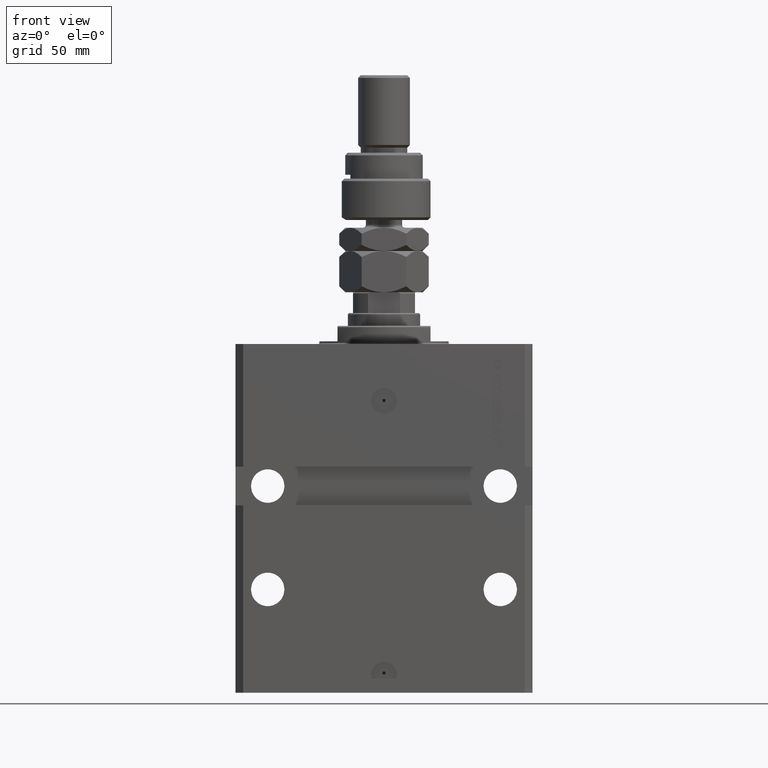
[diagram: clean part render]
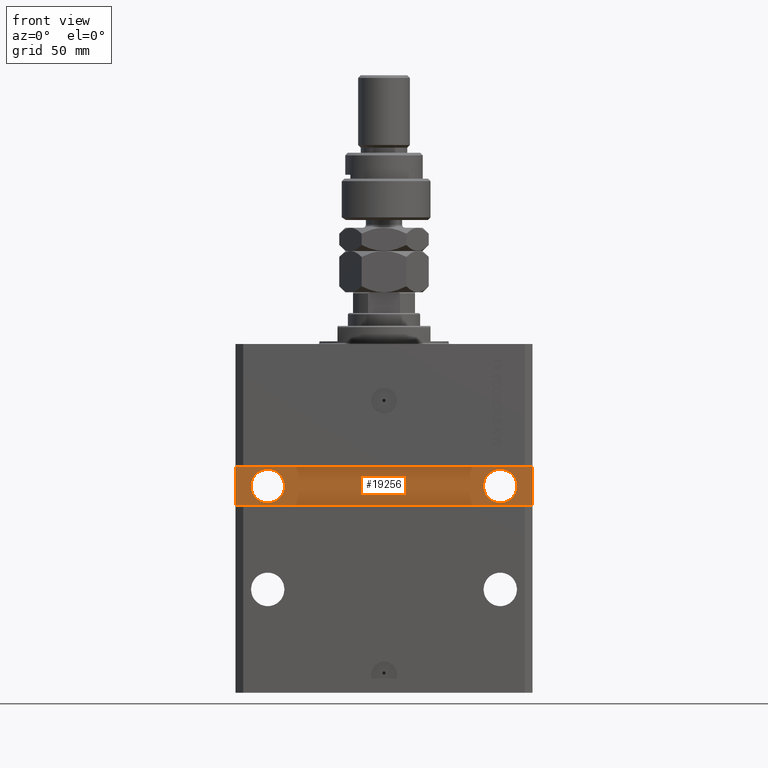
[diagram: same view with one face highlighted and labeled with its STEP entity id]
A machine part, front view. The second image highlights one B-rep face of the part: STEP entity #19256.
In plain terms, the highlighted planar face has unit normal (0, -1, 0).
Its self-contained STEP definition (entity closure, byte-faithful):
#1783 = LINE ( 'NONE', #34362, #15198 ) ;
#2159 = CARTESIAN_POINT ( 'NONE',  ( -44.99999999999998579, -40.00000000000000000, -55.00000000000001421 ) ) ;
#2695 = EDGE_CURVE ( 'NONE', #39566, #10025, #11452, .T. ) ;
#6715 = DIRECTION ( 'NONE',  ( 1.101411730780568590E-16, -1.000000000000000000, 0.000000000000000000 ) ) ;
#7630 = CARTESIAN_POINT ( 'NONE',  ( -57.50000000000000711, -40.00000000000000000, -62.50000000000000000 ) ) ;
#7868 = VERTEX_POINT ( 'NONE', #41938 ) ;
#9873 = ORIENTED_EDGE ( 'NONE', *, *, #31801, .F. ) ;
#10025 = VERTEX_POINT ( 'NONE', #39234 ) ;
#11060 = PLANE ( 'NONE',  #29386 ) ;
#11452 = CIRCLE ( 'NONE', #14796, 6.499999999999999112 ) ;
#11574 = FACE_BOUND ( 'NONE', #31890, .T. ) ;
#11756 = VERTEX_POINT ( 'NONE', #39561 ) ;
#13924 = ORIENTED_EDGE ( 'NONE', *, *, #24439, .F. ) ;
#14796 = AXIS2_PLACEMENT_3D ( 'NONE', #46443, #6715, #34575 ) ;
#15021 = LINE ( 'NONE', #7630, #39394 ) ;
#15198 = VECTOR ( 'NONE', #38579, 1000.000000000000000 ) ;
#15264 = DIRECTION ( 'NONE',  ( 1.000000000000000000, 1.206764157201257045E-16, 0.000000000000000000 ) ) ;
#15284 = DIRECTION ( 'NONE',  ( 1.000000000000000000, 1.206764157201257045E-16, 6.033820786006285224E-17 ) ) ;
#16746 = EDGE_CURVE ( 'NONE', #16876, #40348, #25624, .T. ) ;
#16876 = VERTEX_POINT ( 'NONE', #18813 ) ;
#17486 = EDGE_CURVE ( 'NONE', #40348, #11756, #1783, .T. ) ;
#18218 = DIRECTION ( 'NONE',  ( 1.101411730780568590E-16, -1.000000000000000000, 0.000000000000000000 ) ) ;
#18813 = CARTESIAN_POINT ( 'NONE',  ( 57.50000000000000711, -39.99999999999998579, -47.49999999999998579 ) ) ;
#19256 = ADVANCED_FACE ( 'NONE', ( #11574, #35231, #34715 ), #11060, .T. ) ;
#19331 = CARTESIAN_POINT ( 'NONE',  ( 45.00000000000001421, -39.99999999999999289, -55.00000000000000000 ) ) ;
#19821 = DIRECTION ( 'NONE',  ( 0.000000000000000000, 0.000000000000000000, 1.000000000000000000 ) ) ;
#20606 = EDGE_CURVE ( 'NONE', #43302, #16876, #43746, .T. ) ;
#21987 = ORIENTED_EDGE ( 'NONE', *, *, #20606, .T. ) ;
#22228 = CARTESIAN_POINT ( 'NONE',  ( 57.50000000000000711, -39.99999999999998579, -47.49999999999998579 ) ) ;
#22411 = CARTESIAN_POINT ( 'NONE',  ( 57.50000000000000711, -39.99999999999998579, -62.49999999999999289 ) ) ;
#22880 = ORIENTED_EDGE ( 'NONE', *, *, #24991, .T. ) ;
#24439 = EDGE_CURVE ( 'NONE', #37761, #7868, #42751, .T. ) ;
#24991 = EDGE_CURVE ( 'NONE', #11756, #43302, #15021, .T. ) ;
#25204 = EDGE_LOOP ( 'NONE', ( #9873, #41023 ) ) ;
#25624 = LINE ( 'NONE', #22228, #37806 ) ;
#26180 = CIRCLE ( 'NONE', #29492, 6.499999999999999112 ) ;
#26433 = DIRECTION ( 'NONE',  ( 7.680174481697266334E-17, -1.000000000000000000, 1.232595164407830946E-32 ) ) ;
#27084 = DIRECTION ( 'NONE',  ( 1.206764157201257045E-16, -1.000000000000000000, 0.000000000000000000 ) ) ;
#28009 = CARTESIAN_POINT ( 'NONE',  ( 45.00000000000001421, -39.99999999999999289, -55.00000000000000000 ) ) ;
#29386 = AXIS2_PLACEMENT_3D ( 'NONE', #31527, #27084, #15264 ) ;
#29443 = CARTESIAN_POINT ( 'NONE',  ( 38.50000000000001421, -39.99999999999999289, -55.00000000000000000 ) ) ;
#29492 = AXIS2_PLACEMENT_3D ( 'NONE', #19331, #26433, #51403 ) ;
#30024 = DIRECTION ( 'NONE',  ( 1.000000000000000000, 0.000000000000000000, 0.000000000000000000 ) ) ;
#30901 = DIRECTION ( 'NONE',  ( 7.680174481697266334E-17, -1.000000000000000000, 1.232595164407830946E-32 ) ) ;
#31527 = CARTESIAN_POINT ( 'NONE',  ( 4.842396851142260860E-15, -39.99999999999999289, 0.000000000000000000 ) ) ;
#31801 = EDGE_CURVE ( 'NONE', #10025, #39566, #40470, .T. ) ;
#31890 = EDGE_LOOP ( 'NONE', ( #48662, #13924 ) ) ;
#32650 = AXIS2_PLACEMENT_3D ( 'NONE', #28009, #30901, #46980 ) ;
#33764 = EDGE_CURVE ( 'NONE', #7868, #37761, #26180, .T. ) ;
#34362 = CARTESIAN_POINT ( 'NONE',  ( -57.50000000000000711, -40.00000000000000000, -47.50000000000000711 ) ) ;
#34575 = DIRECTION ( 'NONE',  ( 1.000000000000000000, 0.000000000000000000, 0.000000000000000000 ) ) ;
#34621 = AXIS2_PLACEMENT_3D ( 'NONE', #2159, #18218, #30024 ) ;
#34715 = FACE_OUTER_BOUND ( 'NONE', #42454, .T. ) ;
#34859 = ORIENTED_EDGE ( 'NONE', *, *, #16746, .T. ) ;
#34922 = CARTESIAN_POINT ( 'NONE',  ( -57.50000000000000711, -40.00000000000000000, -47.50000000000000711 ) ) ;
#35231 = FACE_BOUND ( 'NONE', #25204, .T. ) ;
#36711 = CARTESIAN_POINT ( 'NONE',  ( -51.49999999999998579, -40.00000000000000000, -55.00000000000001421 ) ) ;
#37455 = ORIENTED_EDGE ( 'NONE', *, *, #17486, .T. ) ;
#37761 = VERTEX_POINT ( 'NONE', #29443 ) ;
#37806 = VECTOR ( 'NONE', #41670, 1000.000000000000000 ) ;
#38579 = DIRECTION ( 'NONE',  ( 0.000000000000000000, 0.000000000000000000, -1.000000000000000000 ) ) ;
#39234 = CARTESIAN_POINT ( 'NONE',  ( -38.49999999999998579, -40.00000000000000000, -55.00000000000001421 ) ) ;
#39394 = VECTOR ( 'NONE', #15284, 1000.000000000000000 ) ;
#39561 = CARTESIAN_POINT ( 'NONE',  ( -57.50000000000000711, -40.00000000000000000, -62.50000000000000000 ) ) ;
#39566 = VERTEX_POINT ( 'NONE', #36711 ) ;
#39789 = CARTESIAN_POINT ( 'NONE',  ( 57.50000000000000711, -39.99999999999998579, -62.49999999999999289 ) ) ;
#40348 = VERTEX_POINT ( 'NONE', #34922 ) ;
#40357 = VECTOR ( 'NONE', #19821, 1000.000000000000000 ) ;
#40470 = CIRCLE ( 'NONE', #34621, 6.499999999999999112 ) ;
#41023 = ORIENTED_EDGE ( 'NONE', *, *, #2695, .F. ) ;
#41670 = DIRECTION ( 'NONE',  ( -1.000000000000000000, -1.206764157201257045E-16, -1.810146235801885814E-16 ) ) ;
#41938 = CARTESIAN_POINT ( 'NONE',  ( 51.50000000000001421, -39.99999999999999289, -55.00000000000000000 ) ) ;
#42454 = EDGE_LOOP ( 'NONE', ( #22880, #21987, #34859, #37455 ) ) ;
#42751 = CIRCLE ( 'NONE', #32650, 6.499999999999999112 ) ;
#43302 = VERTEX_POINT ( 'NONE', #22411 ) ;
#43746 = LINE ( 'NONE', #39789, #40357 ) ;
#46443 = CARTESIAN_POINT ( 'NONE',  ( -44.99999999999998579, -40.00000000000000000, -55.00000000000001421 ) ) ;
#46980 = DIRECTION ( 'NONE',  ( 1.000000000000000000, 0.000000000000000000, 0.000000000000000000 ) ) ;
#48662 = ORIENTED_EDGE ( 'NONE', *, *, #33764, .F. ) ;
#51403 = DIRECTION ( 'NONE',  ( 1.000000000000000000, 0.000000000000000000, 0.000000000000000000 ) ) ;